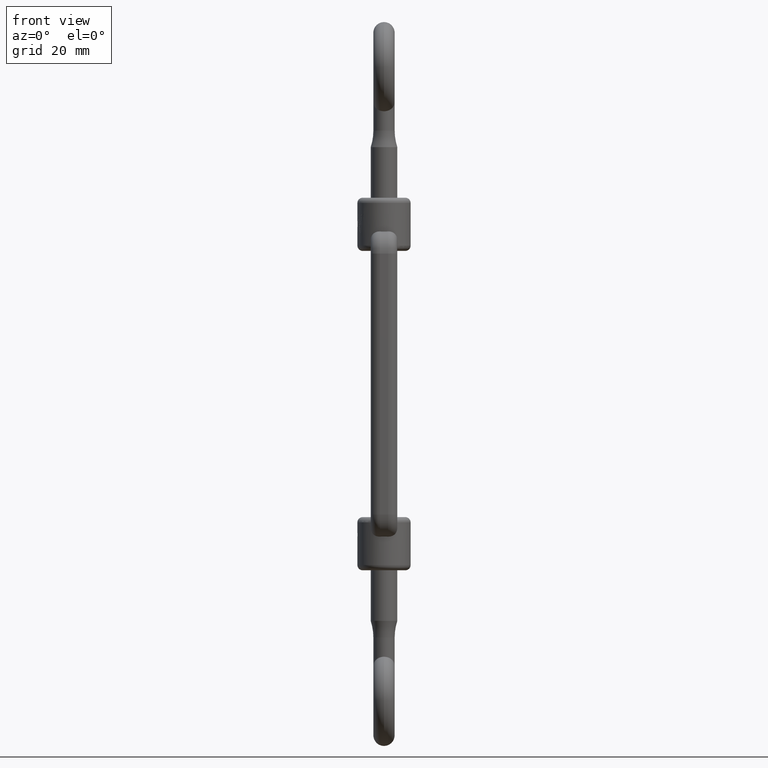
[diagram: clean part render]
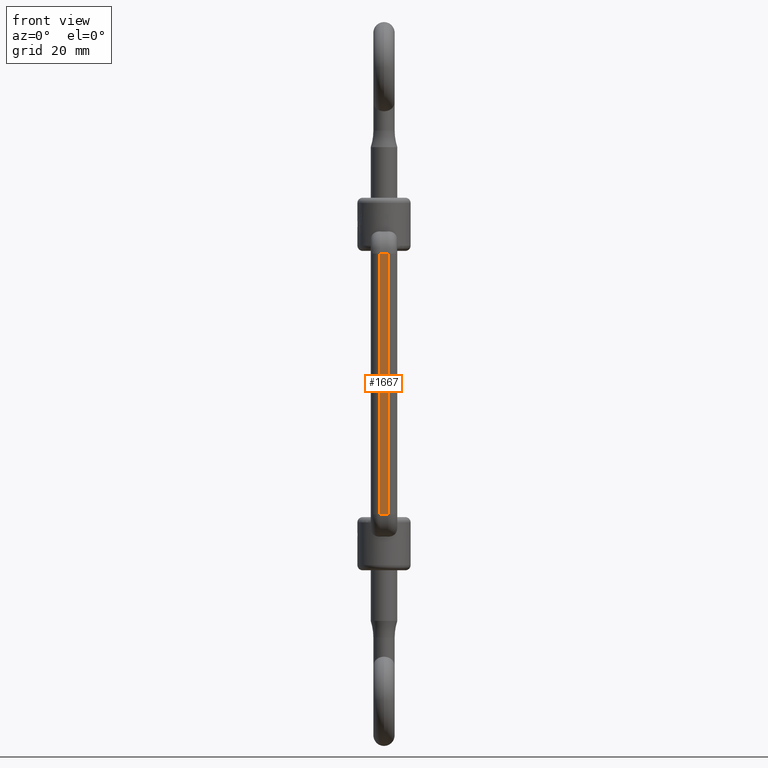
[diagram: same view with one face highlighted and labeled with its STEP entity id]
A machine part, front view. The second image highlights one B-rep face of the part: STEP entity #1667.
In plain terms, the highlighted planar face has unit normal (0, 1, 0).
Its self-contained STEP definition (entity closure, byte-faithful):
#134 = LINE ( 'NONE', #17477, #10692 ) ;
#435 = ORIENTED_EDGE ( 'NONE', *, *, #18408, .T. ) ;
#1414 = ORIENTED_EDGE ( 'NONE', *, *, #16922, .F. ) ;
#1607 = CARTESIAN_POINT ( 'NONE',  ( -0.7499999999999984500, -7.750000000000010700, 24.50000000000000700 ) ) ;
#1667 = ADVANCED_FACE ( 'NONE', ( #12627 ), #15977, .F. ) ;
#2143 = VERTEX_POINT ( 'NONE', #3174 ) ;
#3174 = CARTESIAN_POINT ( 'NONE',  ( -0.7499999999999984500, -7.750000000000008000, -24.49999999999999300 ) ) ;
#3256 = CARTESIAN_POINT ( 'NONE',  ( 0.7499999999999984500, -7.750000000000010700, 24.50000000000000700 ) ) ;
#3261 = DIRECTION ( 'NONE',  ( 0.0000000000000000000, 5.310377987684103200E-017, -1.000000000000000000 ) ) ;
#4398 = DIRECTION ( 'NONE',  ( 0.0000000000000000000, 5.310377987684103200E-017, -1.000000000000000000 ) ) ;
#4414 = DIRECTION ( 'NONE',  ( 1.000000000000000000, 0.0000000000000000000, 0.0000000000000000000 ) ) ;
#4489 = DIRECTION ( 'NONE',  ( 1.000000000000000000, 0.0000000000000000000, 0.0000000000000000000 ) ) ;
#4555 = DIRECTION ( 'NONE',  ( -0.0000000000000000000, 1.000000000000000000, 5.310377987684103200E-017 ) ) ;
#4724 = ORIENTED_EDGE ( 'NONE', *, *, #4919, .F. ) ;
#4919 = EDGE_CURVE ( 'NONE', #15264, #17512, #11915, .T. ) ;
#6228 = LINE ( 'NONE', #11609, #7783 ) ;
#7050 = VECTOR ( 'NONE', #4414, 1000.000000000000000 ) ;
#7783 = VECTOR ( 'NONE', #4398, 1000.000000000000000 ) ;
#8098 = VECTOR ( 'NONE', #4489, 1000.000000000000000 ) ;
#10215 = CARTESIAN_POINT ( 'NONE',  ( -0.7499999999999984500, -7.750000000000010700, 24.50000000000000700 ) ) ;
#10299 = VERTEX_POINT ( 'NONE', #17019 ) ;
#10482 = EDGE_LOOP ( 'NONE', ( #4724, #435, #14981, #1414 ) ) ;
#10692 = VECTOR ( 'NONE', #3261, 1000.000000000000000 ) ;
#11609 = CARTESIAN_POINT ( 'NONE',  ( 0.7499999999999984500, -7.750000000000010700, 24.50000000000000700 ) ) ;
#11915 = LINE ( 'NONE', #1607, #8098 ) ;
#12627 = FACE_OUTER_BOUND ( 'NONE', #10482, .T. ) ;
#13003 = CARTESIAN_POINT ( 'NONE',  ( -0.7499999999999984500, -7.750000000000008000, -24.49999999999999300 ) ) ;
#14057 = EDGE_CURVE ( 'NONE', #2143, #10299, #16044, .T. ) ;
#14715 = DIRECTION ( 'NONE',  ( 0.0000000000000000000, -5.310377987684103200E-017, 1.000000000000000000 ) ) ;
#14981 = ORIENTED_EDGE ( 'NONE', *, *, #14057, .T. ) ;
#15264 = VERTEX_POINT ( 'NONE', #15742 ) ;
#15587 = AXIS2_PLACEMENT_3D ( 'NONE', #10215, #4555, #14715 ) ;
#15742 = CARTESIAN_POINT ( 'NONE',  ( -0.7499999999999984500, -7.750000000000010700, 24.50000000000000700 ) ) ;
#15977 = PLANE ( 'NONE',  #15587 ) ;
#16044 = LINE ( 'NONE', #13003, #7050 ) ;
#16922 = EDGE_CURVE ( 'NONE', #17512, #10299, #6228, .T. ) ;
#17019 = CARTESIAN_POINT ( 'NONE',  ( 0.7499999999999984500, -7.750000000000008000, -24.49999999999999300 ) ) ;
#17477 = CARTESIAN_POINT ( 'NONE',  ( -0.7499999999999984500, -7.750000000000010700, 24.50000000000000700 ) ) ;
#17512 = VERTEX_POINT ( 'NONE', #3256 ) ;
#18408 = EDGE_CURVE ( 'NONE', #15264, #2143, #134, .T. ) ;